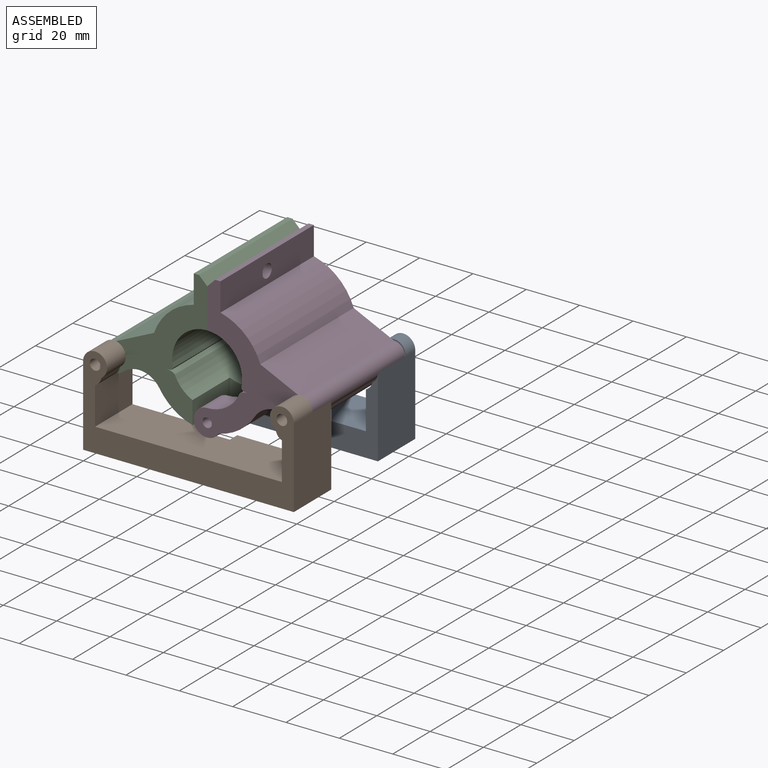
[diagram: assembled view]
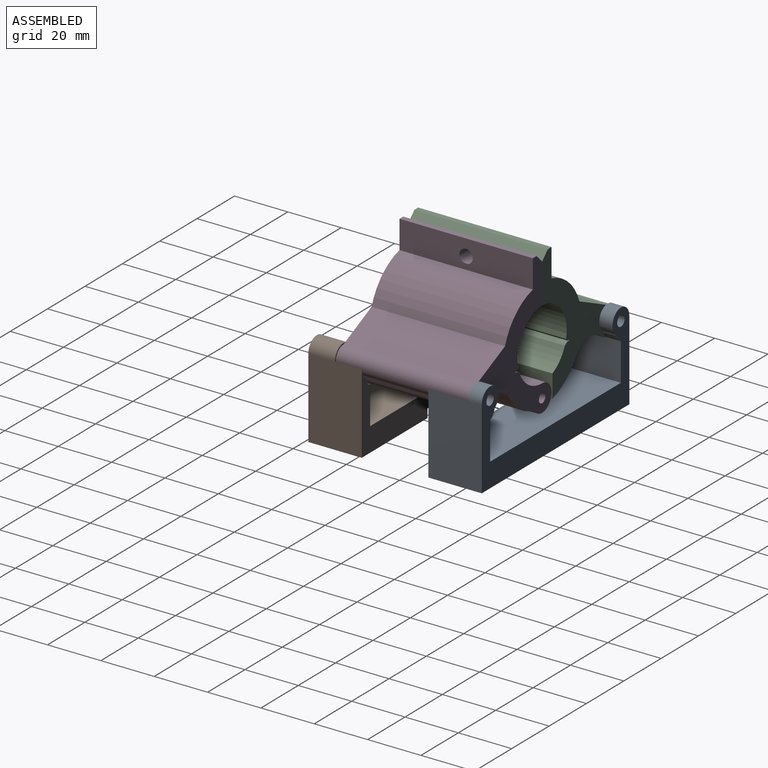
[diagram: assembled view, second angle]
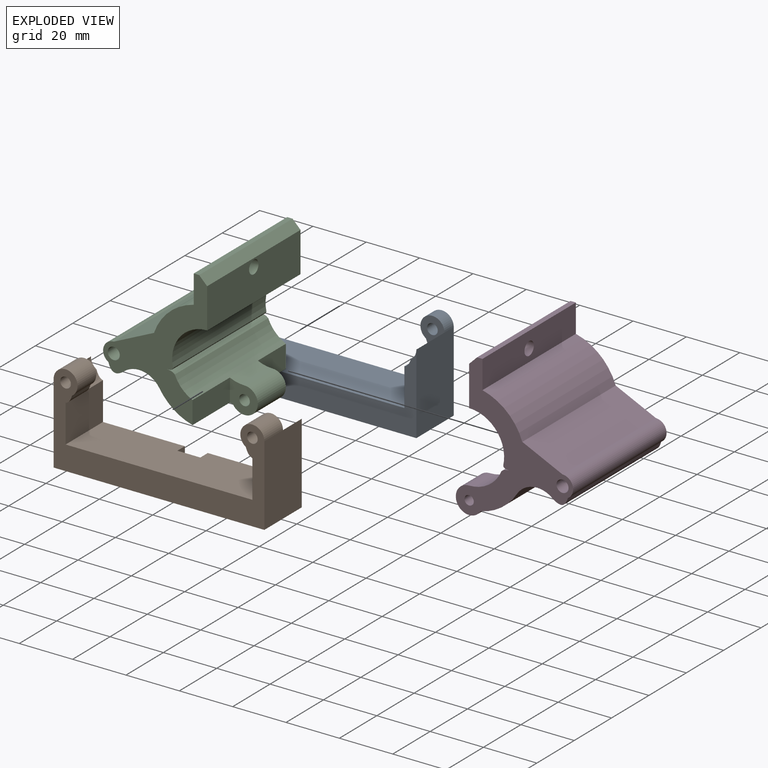
[diagram: exploded view]
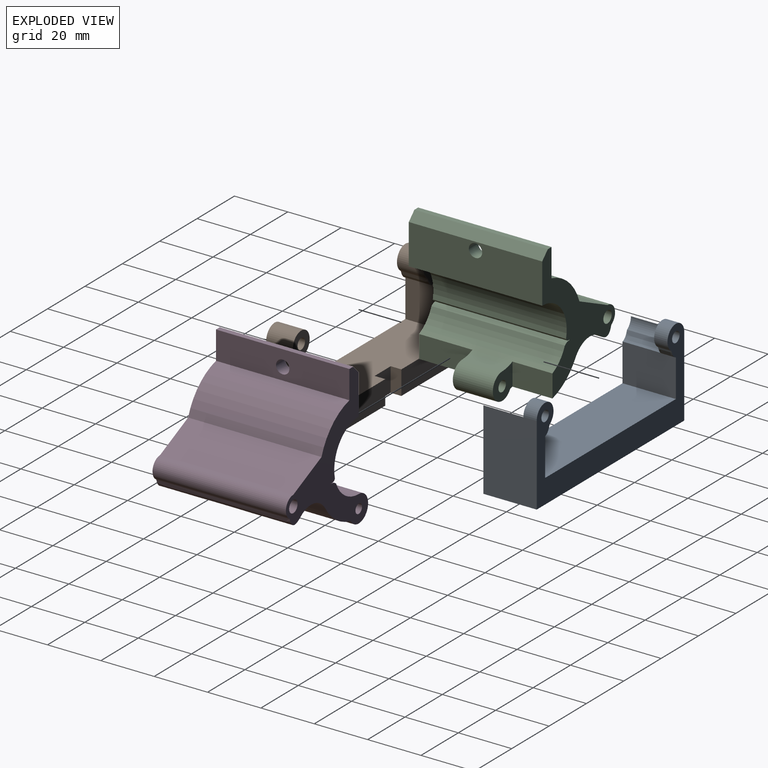
[diagram: exploded view, second angle]
ASSEMBLY  parts=4 mates=4
PART A: 20 faces, bbox 79x20x34.5 mm
  f0: plane 11.37x9mm, normal (0,-1,0), area 58.9mm2, adj f2,f3,f12,f15,f16
  f1: plane 20x14.13mm, normal (1,0,0), area 282.6mm2, adj f2,f11,f14,f15,f19
  f2: extruded ~5x3.08mm, area 20.5mm2, adj f0,f1,f3,f14
  f3: cylinder r=4.5mm len=9mm, axis (0,1,0), area 93.2mm2, adj f0,f2,f4,f14
  f4: plane 30x20mm, normal (-1,0,0), area 600mm2, adj f3,f5,f14,f16,f19
  f5: plane 79x20mm, normal (0,0,-1), area 1580mm2, adj f4,f6,f14,f19
  f6: plane 30x20mm, normal (1,0,0), area 600mm2, adj f5,f7,f14,f17,f19
  f7: cylinder r=4.5mm len=9mm, axis (0,1,0), area 93.2mm2, adj f6,f8,f13,f14
  f8: extruded ~5x3.08mm, area 20.5mm2, adj f7,f9,f13,f14
  f9: plane 20x14.13mm, normal (-1,0,0), area 282.6mm2, adj f8,f11,f14,f18,f19
  f10: cylinder r=2mm len=5mm, axis (0,1,0), area 62.8mm2, adj f13,f14
  f11: plane 70x20mm, normal (0,0,1), area 1400mm2, adj f1,f9,f14,f19
  f12: cylinder r=2mm len=5mm, axis (0,1,0), area 62.8mm2, adj f0,f14
  f13: plane 11.37x9mm, normal (0,-1,0), area 58.9mm2, adj f7,f8,f10,f17,f18
  f14: plane 79x34.5mm, normal (0,1,0), area 978.1mm2, adj f1,f2,f3,f4,f5,f6,f7,f8
  f15: extruded ~15x3.08mm, area 61.5mm2, adj f0,f1,f16,f19
  f16: cylinder r=4.5mm len=15mm, axis (0,1,0), area 67.6mm2, adj f0,f4,f15,f19
  f17: cylinder r=4.5mm len=15mm, axis (0,1,0), area 67.6mm2, adj f6,f13,f18,f19
  f18: extruded ~15x3.08mm, area 61.5mm2, adj f9,f13,f17,f19
  f19: plane 79x30mm, normal (0,-1,0), area 860.4mm2, adj f1,f4,f5,f6,f9,f11,f15,f16
PART B: 24 faces, bbox 79x20x34.5 mm
  f0: cylinder r=4.5mm len=10mm, axis (0,1,0), area 186.4mm2, adj f1,f10,f12,f13
  f1: plane 30x20mm, normal (-1,0,0), area 600mm2, adj f0,f2,f12,f16,f18
  f2: plane 79x20mm, normal (0,0,-1), area 1545.6mm2, adj f1,f3,f12,f17,f18,f21,f22,f23
  f3: plane 30x20mm, normal (1,0,0), area 600mm2, adj f2,f4,f12,f20,f22
  f4: cylinder r=4.5mm len=10mm, axis (0,1,0), area 186.4mm2, adj f3,f5,f12,f14
  f5: extruded ~10x3.08mm, area 41mm2, adj f4,f6,f12,f14
  f6: plane 20x14.13mm, normal (-1,0,0), area 282.6mm2, adj f5,f7,f12,f19,f22
  f7: plane 70x20mm, normal (0,0,1), area 1365.6mm2, adj f6,f8,f12,f17,f18,f21,f22,f23
  f8: plane 20x14.13mm, normal (1,0,0), area 282.6mm2, adj f7,f10,f12,f15,f18
  f9: cylinder r=2mm len=10mm, axis (0,1,0), area 125.7mm2, adj f12,f13
  f10: extruded ~10x3.08mm, area 41mm2, adj f0,f8,f12,f13
  f11: cylinder r=2mm len=10mm, axis (0,1,0), area 125.7mm2, adj f12,f14
  f12: plane 79x34.5mm, normal (0,1,0), area 978.1mm2, adj f0,f1,f2,f3,f4,f5,f6,f7
  f13: plane 11.37x9mm, normal (0,-1,0), area 58.9mm2, adj f0,f9,f10,f15,f16
  f14: plane 11.37x9mm, normal (0,-1,0), area 58.9mm2, adj f4,f5,f11,f19,f20
  f15: extruded ~10x3.08mm, area 41mm2, adj f8,f13,f16,f18
  f16: cylinder r=4.5mm len=10mm, axis (0,1,0), area 45mm2, adj f1,f13,f15,f18
  f17: plane 9x4mm, normal (1,0,0), area 36mm2, adj f2,f7,f18,f23
  f18: plane 35.2x30mm, normal (0,-1,0), area 391.5mm2, adj f1,f2,f7,f8,f15,f16,f17
  f19: extruded ~10x3.08mm, area 41mm2, adj f6,f14,f20,f22
  f20: cylinder r=4.5mm len=10mm, axis (0,1,0), area 45mm2, adj f3,f14,f19,f22
  f21: plane 9x4mm, normal (-1,0,0), area 36mm2, adj f2,f7,f22,f23
  f22: plane 35.2x30mm, normal (0,-1,0), area 391.5mm2, adj f2,f3,f6,f7,f19,f20,f21
  f23: plane 9x8.59mm, normal (0,-1,0), area 77.3mm2, adj f2,f7,f17,f21
PART C: 24 faces, bbox 44x50x54.2 mm
  f0: cylinder r=5mm len=15mm, axis (0,1,0), area 313.1mm2, adj f1,f2,f18,f20
  f1: cylinder r=13.12mm len=50mm, axis (0,1,0), area 575.8mm2, adj f0,f3,f15,f16,f17,f18,f19,f20
  f2: cylinder r=21.12mm len=50mm, axis (0,1,0), area 817.8mm2, adj f0,f13,f15,f16,f17,f18,f19,f20
  f3: extruded ~50x2.87mm, area 155.1mm2, adj f1,f4,f15,f16
  f4: extruded ~50x2.22mm, area 132.2mm2, adj f3,f5,f15,f16
  f5: cylinder r=13.12mm len=50mm, axis (0,1,0), area 1182.1mm2, adj f4,f6,f15,f16
  f6: plane 50x15mm, normal (1,0,0), area 730.4mm2, adj f5,f15,f16,f22,f23
  f7: plane 50x2mm, normal (0,0,1), area 100mm2, adj f8,f15,f16,f23
  f8: plane 50x10.6mm, normal (-1,0,0), area 510.4mm2, adj f7,f9,f15,f16,f22
  f9: cylinder r=21.12mm len=50mm, axis (0,1,0), area 1050mm2, adj f8,f10,f15,f16
  f10: plane 50x15.07mm, normal (-0.42,0,0.91), area 830.8mm2, adj f9,f11,f15,f16
  f11: cylinder r=4mm len=50mm, axis (0,1,0), area 523.6mm2, adj f10,f12,f15,f16
  f12: extruded ~50x5.91mm, area 397.6mm2, adj f11,f13,f15,f16
  f13: cylinder r=9mm len=50mm, axis (0,1,0), area 745.2mm2, adj f2,f12,f15,f16
  f14: cylinder r=2.25mm len=50mm, axis (0,1,0), area 706.9mm2, adj f15,f16
  f15: plane 51.52x39mm, normal (0,-1,0), area 610.5mm2, adj f1,f2,f3,f4,f5,f6,f7,f8
  f16: plane 51.52x39mm, normal (0,1,0), area 610.5mm2, adj f1,f2,f3,f4,f5,f6,f7,f8
  f17: plane 15x8.48mm, normal (1,0,0), area 127.2mm2, adj f1,f2,f16,f18
  f18: plane 11.21x10.5mm, normal (0,1,0), area 77.7mm2, adj f0,f1,f2,f17,f21
  f19: plane 20x8.48mm, normal (1,0,0), area 169.6mm2, adj f1,f2,f15,f20
  f20: plane 11.21x10.5mm, normal (0,-1,0), area 77.7mm2, adj f0,f1,f2,f19,f21
  f21: cylinder r=2mm len=15mm, axis (0,1,0), area 188.5mm2, adj f18,f20
  f22: cylinder r=2.5mm len=5mm, axis (1,0,0), area 78.5mm2, adj f6,f8
  f23: plane 50x3mm, normal (0.71,0,0.71), area 212.1mm2, adj f6,f7,f15,f16
PART D: 25 faces, bbox 44x50x54.2 mm
  f0: cylinder r=5mm len=15mm, axis (0,1,0), area 313.1mm2, adj f2,f14,f16,f19
  f1: cylinder r=5mm len=11mm, axis (0,1,0), area 229.6mm2, adj f2,f14,f17,f20
  f2: cylinder r=13.12mm len=50mm, axis (0,1,0), area 640.8mm2, adj f0,f1,f3,f16,f17,f18,f19,f20
  f3: extruded ~50x2.87mm, area 155.1mm2, adj f2,f4,f16,f17
  f4: extruded ~50x2.22mm, area 132.2mm2, adj f3,f5,f16,f17
  f5: cylinder r=13.12mm len=50mm, axis (0,1,0), area 1182.1mm2, adj f4,f6,f16,f17
  f6: plane 50x15mm, normal (1,0,0), area 730.4mm2, adj f5,f16,f17,f23,f24
  f7: plane 50x2mm, normal (0,0,1), area 100mm2, adj f8,f16,f17,f24
  f8: plane 50x10.6mm, normal (-1,0,0), area 510.4mm2, adj f7,f9,f16,f17,f23
  f9: cylinder r=21.12mm len=50mm, axis (0,1,0), area 1050mm2, adj f8,f10,f16,f17
  f10: plane 50x15.07mm, normal (-0.42,0,0.91), area 830.8mm2, adj f9,f11,f16,f17
  f11: cylinder r=4mm len=50mm, axis (0,1,0), area 523.6mm2, adj f10,f12,f16,f17
  f12: extruded ~50x5.91mm, area 397.6mm2, adj f11,f13,f16,f17
  f13: cylinder r=9mm len=50mm, axis (0,1,0), area 745.2mm2, adj f12,f14,f16,f17
  f14: cylinder r=21.12mm len=50mm, axis (0,1,0), area 833.8mm2, adj f0,f1,f13,f16,f17,f18,f19,f20
  f15: cylinder r=2.25mm len=50mm, axis (0,1,0), area 706.9mm2, adj f16,f17
  f16: plane 54.25x44mm, normal (0,-1,0), area 691.1mm2, adj f0,f2,f3,f4,f5,f6,f7,f8
  f17: plane 54.25x44mm, normal (0,1,0), area 691.1mm2, adj f1,f2,f3,f4,f5,f6,f7,f8
  f18: plane 24x8.46mm, normal (1,0,0), area 203mm2, adj f2,f14,f19,f20
  f19: plane 11.16x10.4mm, normal (0,1,0), area 79.8mm2, adj f0,f2,f14,f18,f22
  f20: plane 11.16x10.4mm, normal (0,-1,0), area 79.8mm2, adj f1,f2,f14,f18,f21
  f21: cylinder r=1.75mm len=11mm, axis (0,-1,0), area 121mm2, adj f17,f20
  f22: cylinder r=1.75mm len=15mm, axis (0,-1,0), area 164.9mm2, adj f16,f19
  f23: cylinder r=2.5mm len=5mm, axis (1,0,0), area 78.5mm2, adj f6,f8
  f24: plane 50x3mm, normal (0.71,0,0.71), area 212.1mm2, adj f6,f7,f16,f17
PLACE A rot(axis=(0,0,1),0deg) t=(19.06,-91.65,0)mm
PLACE B rot(axis=(0,0,1),180deg) t=(55.06,-156.65,0)mm
PLACE C rot(axis=(1,0,0),0deg) t=(19.06,-96.65,0)mm
PLACE D rot(axis=(0,0,1),180deg) t=(55.06,-146.65,0)mm
MATE fastened B.f4 <-> C.f14  axis (0,1,0) through (2.06,-146.65,0)mm
MATE fastened A.f12 <-> C.f14  axis (0,-1,0) through (2.06,-96.65,0)mm
MATE fastened D.f23 <-> C.f22  axis (-1,0,0) through (37.06,-121.65,29.12)mm
MATE cylindrical C.f22 <-> D.f23  axis (1,0,0) through (37.06,-121.65,29.12)mm
